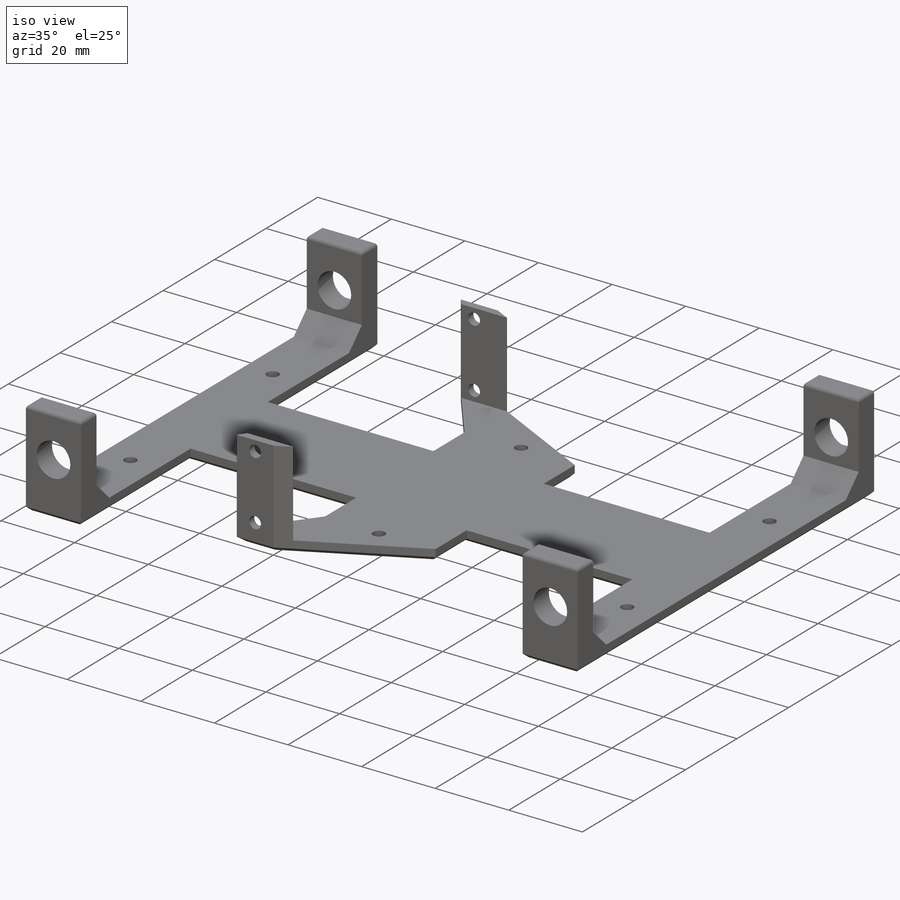
[diagram: iso view]
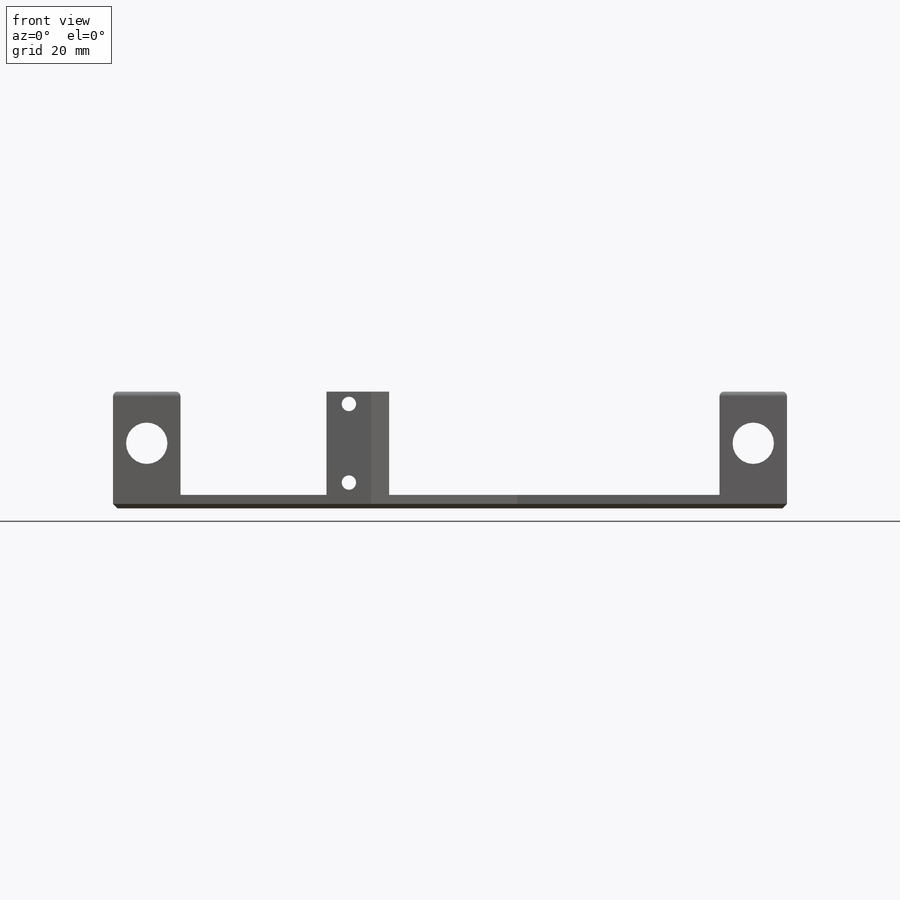
[diagram: front view]
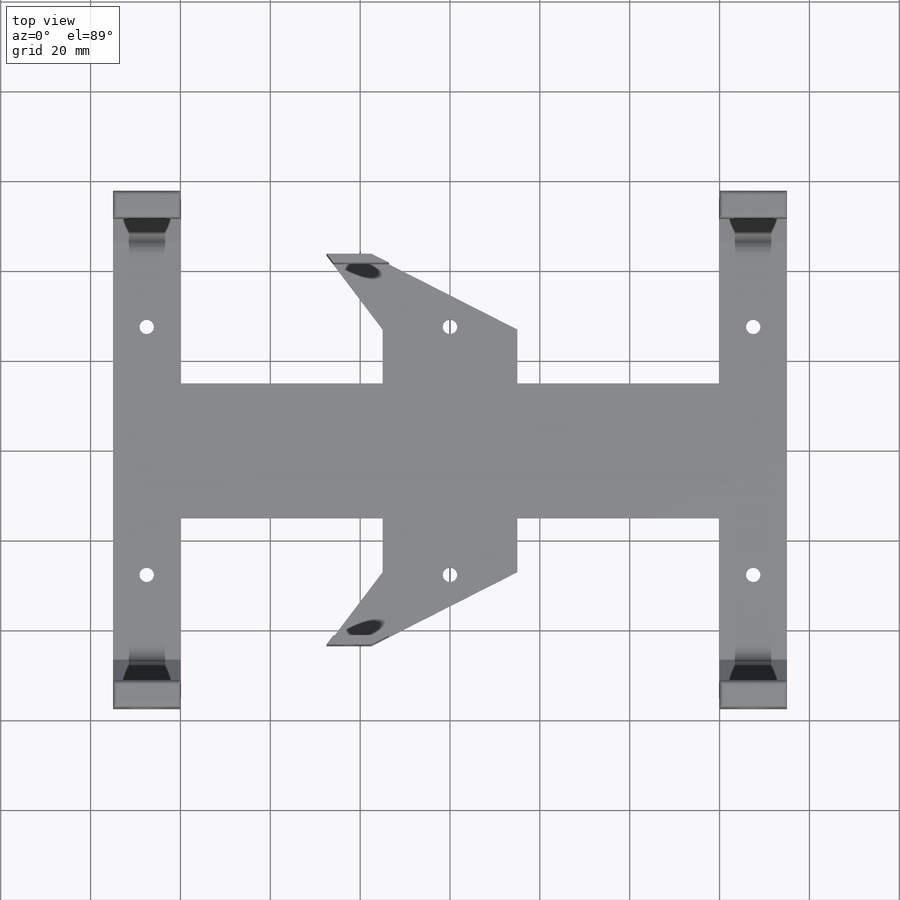
[diagram: top view]
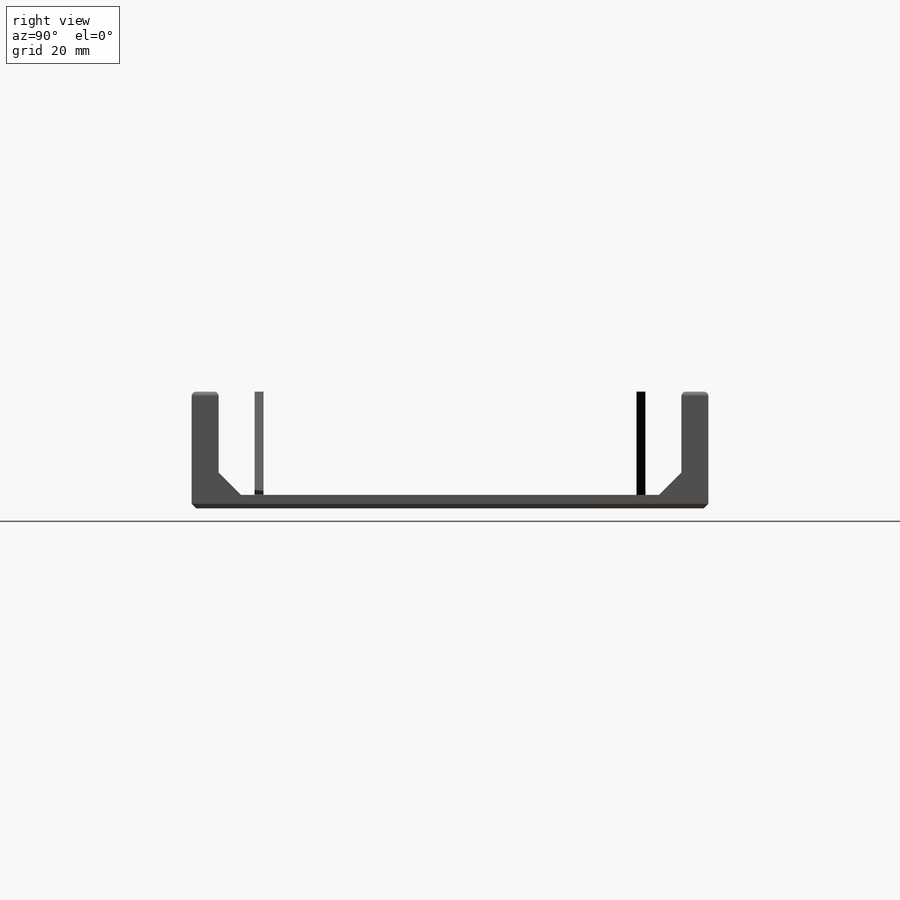
[diagram: right view]
SOLIDWORKS PART (.sldprt)
format: sldprt  version: not decoded by parser v0  size: 483,840 bytes
history: native  units: mm
features: sketch x7, cut_extrude x4, extrude x2, mirror x2, chamfer x2, material x1, fillet x1 (+11 scaffold rows collapsed)
feature tree (30):
  scaffold x11  (default folders/planes/origin — collapsed)
  material  "Material <not specified>"
  sketch  "Sketch1"  dims[c1.D1=~88.883758mm c1.D2=~37.47481mm c2.D1=50.0mm c2.D2=140.0mm c2.D3=~70.408232mm c2.D4=~29.988562mm c3.D3=~125.603114mm c3.D4=~43.225232mm c4.D3=54.0mm c4.D4=135.0mm c4.D5=54.0mm c4.D6=~48.101304mm c5.D5=54.0mm c5.D6=~20.586957mm c6.D5=5.0mm c6.D6=30.0mm c6.D7=5.0mm c6.D8=115.0mm c6.D9=40.5mm c7.D7=6.0mm c7.D9=14.0mm c7.D10=45.0mm c7.D11=~16.878145mm c8.D11=~62.555906deg c9.D11=10.0mm c9.D12=~44.229515mm]
  sketch  "Sketch2"  dims[c1.D1=~25.631597mm c1.D2=135.0mm c2.D1=~0.805181mm c2.D2=~6.441448mm c3.D1=30.0mm]
  extrude  "Boss-Extrude1"  Depth=3mm
  sketch  "Sketch3"  dims[D1=2.0mm D2=~41.252718mm]
  extrude  "Boss-Extrude2"  Depth=23mm
  sketch  "Sketch4"  dims[c1.D1=3.2mm c1.D2=3.2mm c1.D4=3.2mm c1.D3=17.5mm c2.D4=~2.862736mm c2.D3=8.75mm c2.D2=3.0mm]
  cut_extrude  "Cut-Extrude1"  Depth=23mm
  sketch  "Sketch5"  dims[c1.D2=9.2mm c1.D1=~19.387157mm c2.D1=90.0deg c3.D1=3.0mm]
  cut_extrude  "Cut-Extrude2"  Depth=23mm
  mirror  "Mirror3"
  mirror  "Mirror4"
  sketch  "Sketch6"  dims[D1=3.2mm D2=3.2mm D3=2.6mm D4=~10.999327mm]
  cut_extrude  "Cut-Extrude3"  Depth=23mm
  chamfer  "Chamfer1"  Distance=1mm Angle=45deg
  fillet  "Fillet1"  Radius=1mm
  sketch  "Sketch7"  dims[c1.D1=~22.602582mm c1.D2=~26.788245mm c2.D1=~139.681566mm c2.D2=~189.191984mm]
  cut_extrude  "Cut-Extrude4"  [1 undecoded]
  chamfer  "Chamfer2"  Distance=5mm Angle=45deg
decode coverage: 15 of 18 modeling features carry decoded parameters
note: ~ marks probable driven/reference dimensions
note: 1 parameter value undecoded
note: suppression state not decoded; provenance and decode notes live in map.json
